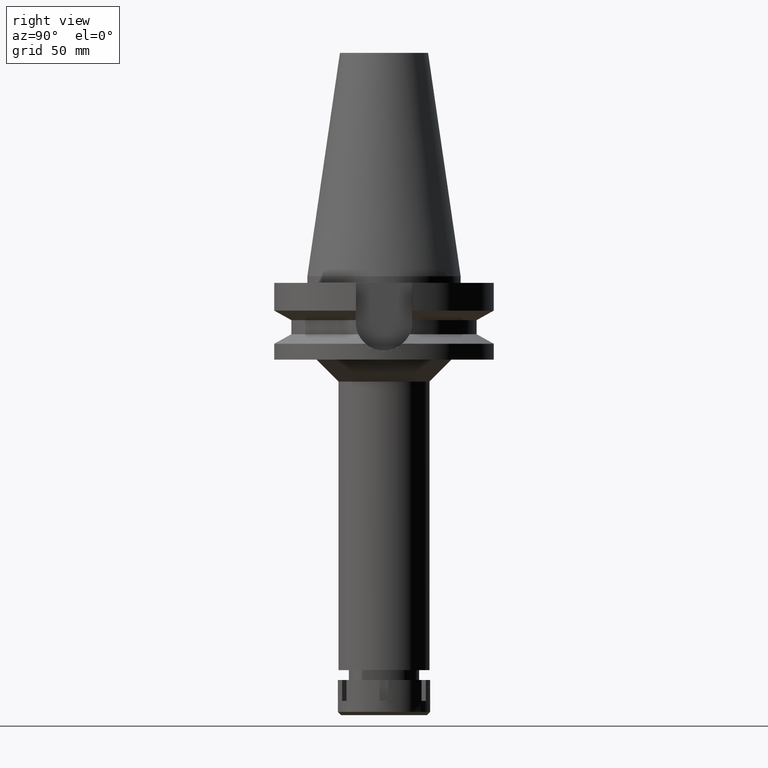
[diagram: clean part render]
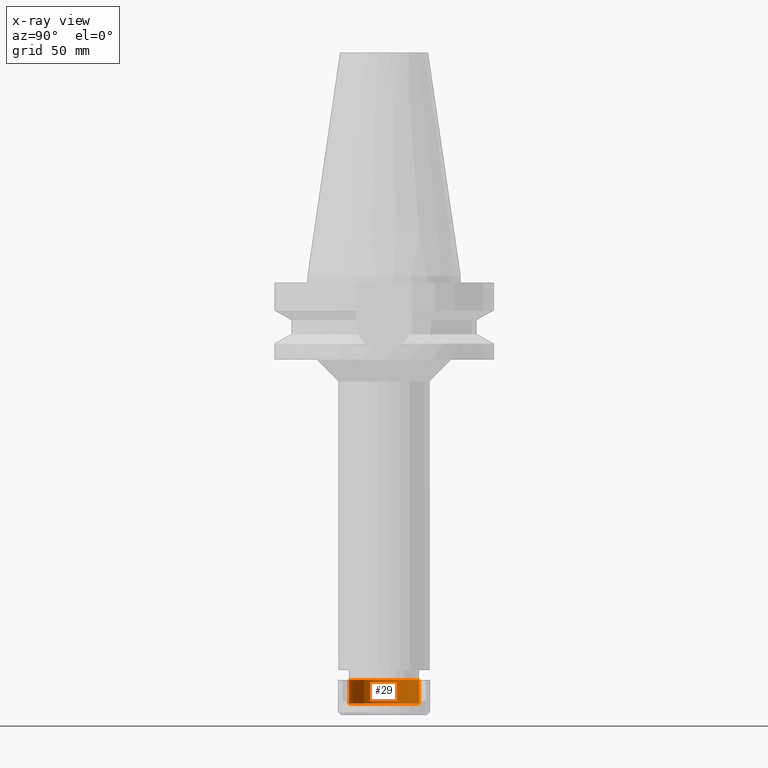
[diagram: x-ray — body ghosted, one internal face saturated and labeled with its STEP entity id]
A machine part, right view, then the same camera in x-ray: the body is ghosted and one INTERNAL B-rep face — a face not visible from any outside direction — is saturated and labeled: STEP entity #29.
In plain terms, the highlighted cylindrical surface (edge-blend (fillet) strip) has radius 16 mm, axis along (0, 0, -1).
Its self-contained STEP definition (entity closure, byte-faithful):
#29 = ADVANCED_FACE ( 'NONE', ( #965 ), #2372, .F. ) ;
#51 = EDGE_CURVE ( 'NONE', #155, #3063, #1381, .T. ) ;
#155 = VERTEX_POINT ( 'NONE', #1839 ) ;
#335 = CARTESIAN_POINT ( 'NONE',  ( 0.0000000000000000000, 0.0000000000000000000, 0.0000000000000000000 ) ) ;
#516 = VECTOR ( 'NONE', #2378, 1000.000000000000000 ) ;
#527 = AXIS2_PLACEMENT_3D ( 'NONE', #1750, #1175, #614 ) ;
#614 = DIRECTION ( 'NONE',  ( 0.0000000000000000000, 1.000000000000000000, 0.0000000000000000000 ) ) ;
#637 = LINE ( 'NONE', #2598, #516 ) ;
#667 = CARTESIAN_POINT ( 'NONE',  ( 0.0000000000000000000, 16.00000000000000000, 0.0000000000000000000 ) ) ;
#797 = CARTESIAN_POINT ( 'NONE',  ( 0.0000000000000000000, 16.00000000000000000, -10.80000000000000071 ) ) ;
#965 = FACE_OUTER_BOUND ( 'NONE', #2102, .T. ) ;
#1175 = DIRECTION ( 'NONE',  ( 0.0000000000000000000, 0.0000000000000000000, 1.000000000000000000 ) ) ;
#1198 = AXIS2_PLACEMENT_3D ( 'NONE', #335, #1802, #3154 ) ;
#1356 = EDGE_CURVE ( 'NONE', #2255, #3092, #2131, .T. ) ;
#1381 = CIRCLE ( 'NONE', #3500, 16.00000000000000000 ) ;
#1551 = ORIENTED_EDGE ( 'NONE', *, *, #2467, .T. ) ;
#1750 = CARTESIAN_POINT ( 'NONE',  ( 0.0000000000000000000, 0.0000000000000000000, 0.0000000000000000000 ) ) ;
#1784 = DIRECTION ( 'NONE',  ( 0.0000000000000000000, 0.0000000000000000000, -1.000000000000000000 ) ) ;
#1802 = DIRECTION ( 'NONE',  ( 0.0000000000000000000, 0.0000000000000000000, -1.000000000000000000 ) ) ;
#1839 = CARTESIAN_POINT ( 'NONE',  ( 0.0000000000000000000, -16.00000000000000000, -10.80000000000000071 ) ) ;
#1911 = DIRECTION ( 'NONE',  ( 0.0000000000000000000, 0.0000000000000000000, 1.000000000000000000 ) ) ;
#1974 = CARTESIAN_POINT ( 'NONE',  ( 0.0000000000000000000, -16.00000000000000000, 0.0000000000000000000 ) ) ;
#2072 = ORIENTED_EDGE ( 'NONE', *, *, #2809, .F. ) ;
#2089 = CARTESIAN_POINT ( 'NONE',  ( 0.0000000000000000000, 0.0000000000000000000, -10.80000000000000071 ) ) ;
#2102 = EDGE_LOOP ( 'NONE', ( #2443, #2072, #2662, #1551 ) ) ;
#2131 = CIRCLE ( 'NONE', #527, 16.00000000000000000 ) ;
#2167 = LINE ( 'NONE', #2420, #2681 ) ;
#2255 = VERTEX_POINT ( 'NONE', #667 ) ;
#2372 = CYLINDRICAL_SURFACE ( 'NONE', #1198, 16.00000000000000000 ) ;
#2378 = DIRECTION ( 'NONE',  ( 0.0000000000000000000, 0.0000000000000000000, 1.000000000000000000 ) ) ;
#2420 = CARTESIAN_POINT ( 'NONE',  ( 0.0000000000000000000, 16.00000000000000000, -10.80000000000000071 ) ) ;
#2443 = ORIENTED_EDGE ( 'NONE', *, *, #1356, .T. ) ;
#2467 = EDGE_CURVE ( 'NONE', #3063, #2255, #2167, .T. ) ;
#2598 = CARTESIAN_POINT ( 'NONE',  ( 0.0000000000000000000, -16.00000000000000000, -10.80000000000000071 ) ) ;
#2662 = ORIENTED_EDGE ( 'NONE', *, *, #51, .T. ) ;
#2681 = VECTOR ( 'NONE', #1911, 1000.000000000000000 ) ;
#2809 = EDGE_CURVE ( 'NONE', #155, #3092, #637, .T. ) ;
#2880 = DIRECTION ( 'NONE',  ( 0.0000000000000000000, -1.000000000000000000, 0.0000000000000000000 ) ) ;
#3063 = VERTEX_POINT ( 'NONE', #797 ) ;
#3092 = VERTEX_POINT ( 'NONE', #1974 ) ;
#3154 = DIRECTION ( 'NONE',  ( 0.0000000000000000000, -1.000000000000000000, 0.0000000000000000000 ) ) ;
#3500 = AXIS2_PLACEMENT_3D ( 'NONE', #2089, #1784, #2880 ) ;